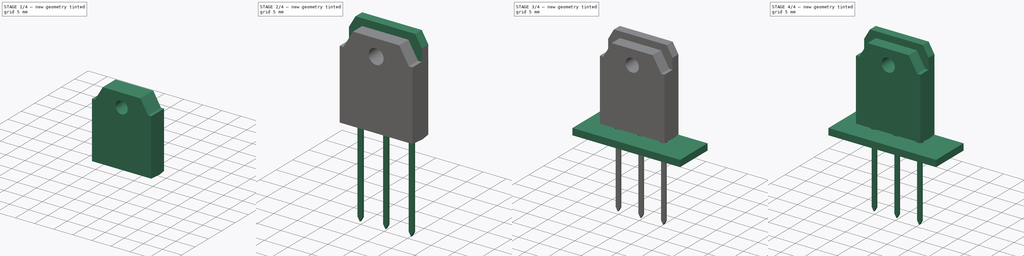
[diagram: build sequence overview — one tinted view per stage of 4, left to right]
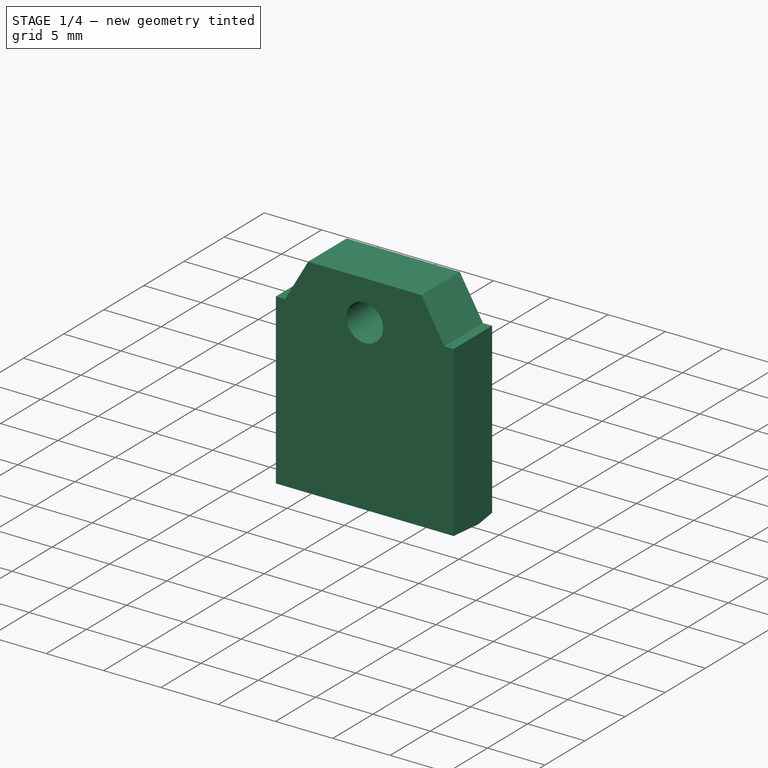
[diagram: stage 1 of 4 — iso view after this stage's code; geometry added in this stage tinted green]
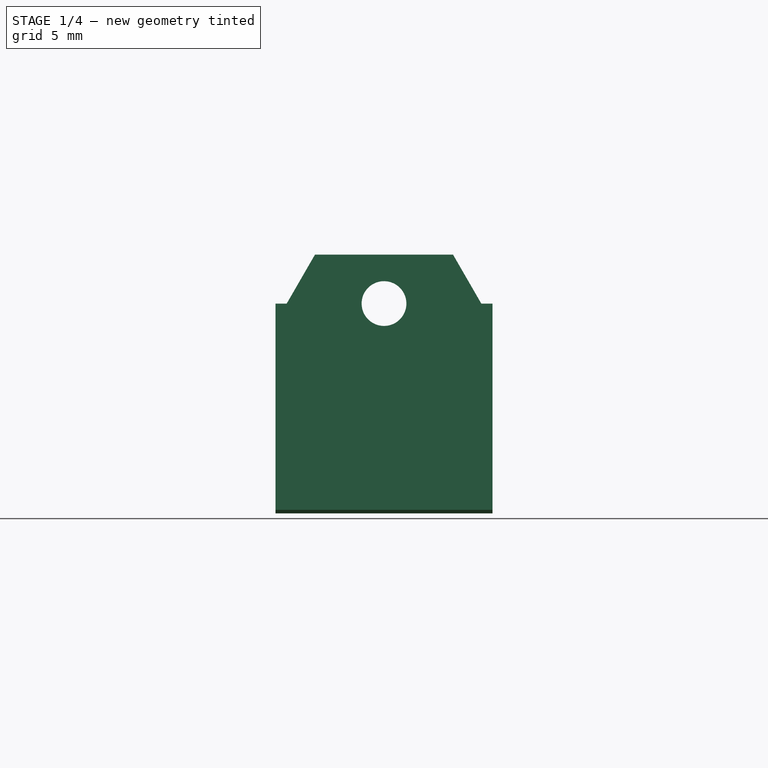
[diagram: stage 1 of 4 — front view after this stage's code; geometry added in this stage tinted green]
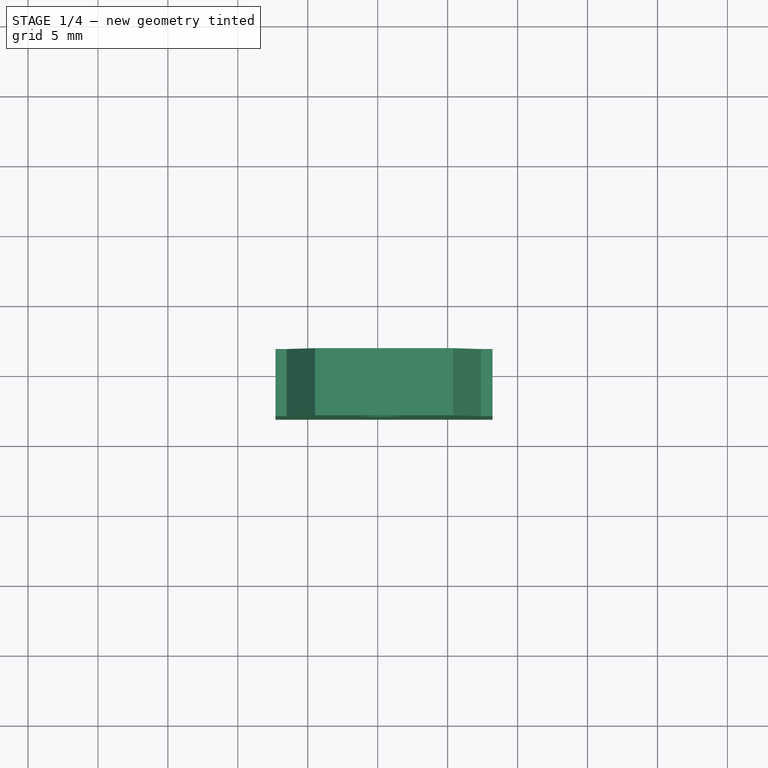
[diagram: stage 1 of 4 — top view after this stage's code; geometry added in this stage tinted green]
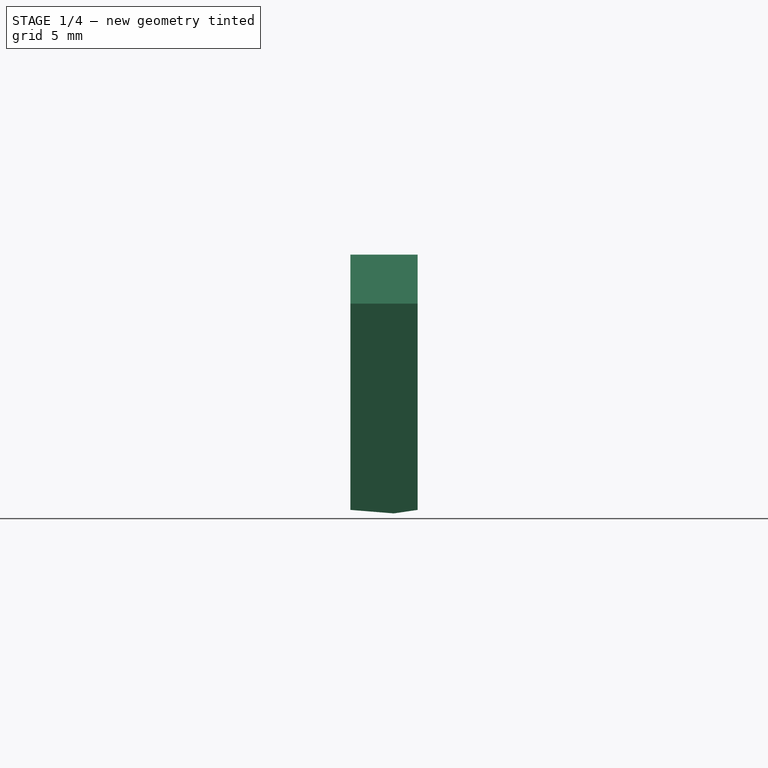
[diagram: stage 1 of 4 — right view after this stage's code; geometry added in this stage tinted green]
FCSTD DOCUMENT  (FreeCAD 0.16R6712 (Git))
Label: TO-3PB-3_Vertical
License: All rights reserved
LicenseURL: http://en.wikipedia.org/wiki/All_rights_reserved
objects: Part::FeaturePython×7, Sketcher::SketchObject×4, PartDesign::Pad×3, App::DocumentObjectGroup×1, PartDesign::Pocket×1, Part::MultiFuse×1
note: 20 computed .brp shape members not serialized (recipe doc carries the construction recipe); baked Part::Feature solids carry a one-line shape summary decoded from their .brp

FEATURE [Sketcher::SketchObject] Sketch001
  Placement = pos=(5.45,0,0) rot=(0.57735,0.57735,0.57735;2.0944rad)
  sketch-geometry (6):
    g0: LineSegment StartX=0 StartY=1.3 StartZ=0 EndX=-3.1 EndY=1.55 EndZ=0
    g1: LineSegment StartX=-3.1 StartY=1.55 StartZ=0 EndX=-3.1 EndY=19.8 EndZ=0
    g2: LineSegment StartX=-3.1 StartY=19.8 StartZ=0 EndX=1.7 EndY=19.8 EndZ=0
    g3: LineSegment StartX=1.7 StartY=19.8 StartZ=0 EndX=1.7 EndY=1.55 EndZ=0
    g4: LineSegment StartX=1.7 StartY=1.55 StartZ=0 EndX=0 EndY=1.3 EndZ=0
    g5: LineSegment [constr] StartX=-3.1 StartY=1.55 StartZ=0 EndX=1.7 EndY=1.55 EndZ=0
  constraints (17):
    c: PointOnObject(g0,g-2)
    c: Coincident(g1,g0)
    c: Vertical(g1)
    c: Horizontal(g2)
    c: Coincident(g3,g2)
    c: Vertical(g3)
    c: Coincident(g4,g3)
    c: Coincident(g4,g0)
    c: Coincident(g5,g0)
    c: Coincident(g5,g3)
    c: Horizontal(g5)
    c: DistanceX(g0,g3) = 1.7
    c: DistanceX(g1,g2) = 4.8
    c: DistanceY(g0,g3) = 0.25
    c: DistanceY(g0,g2) = 18.5
    c: DistanceY(g-1,g0) = 1.3
    c: Coincident(g1,g2)
FEATURE [PartDesign::Pad] Pad001
  Length = 15.51
  Length2 = 100
  Midplane = true
  Placement = pos=(5.45,0,0) rot=(0.57735,0.57735,0.57735;2.0944rad)
  Sketch = -> Sketch001
  Type = 0
  expr: Length = 15.5 + 0.01
FEATURE [App::DocumentObjectGroup] TO_3PB_3_Vertical_fp
  Group = -> [FCrtYd_lines,FFab_lines,Filk_lines,TopPads,BotPads,THPs,newPCB]
FEATURE [PartDesign::Pocket] Pocket
  Length = 5
  Placement = pos=(5.45,0,0) rot=(0.57735,0.57735,0.57735;2.0944rad)
  Sketch = -> Sketch006
  Type = 1
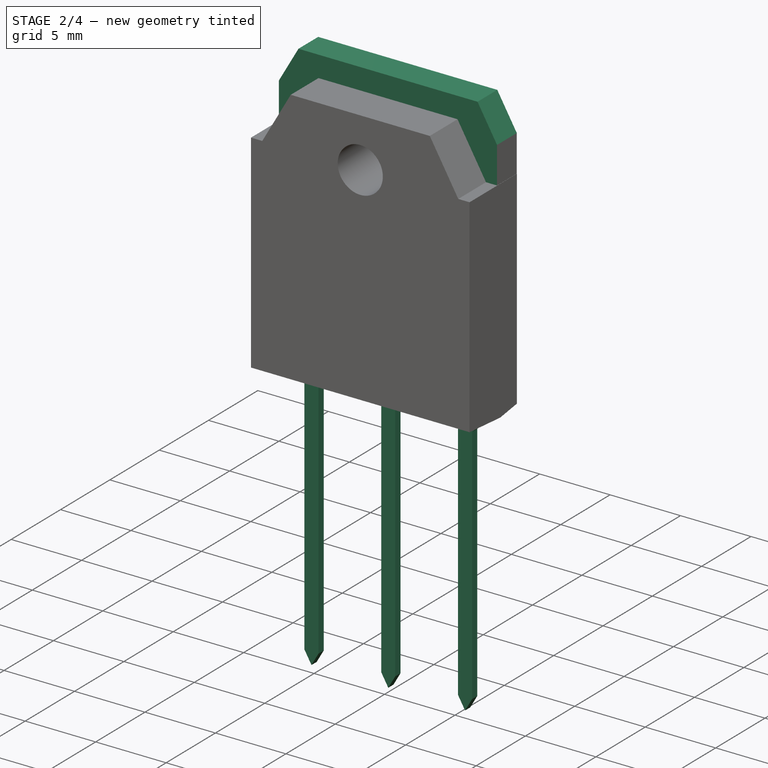
[diagram: stage 2 of 4 — iso view after this stage's code; geometry added in this stage tinted green]
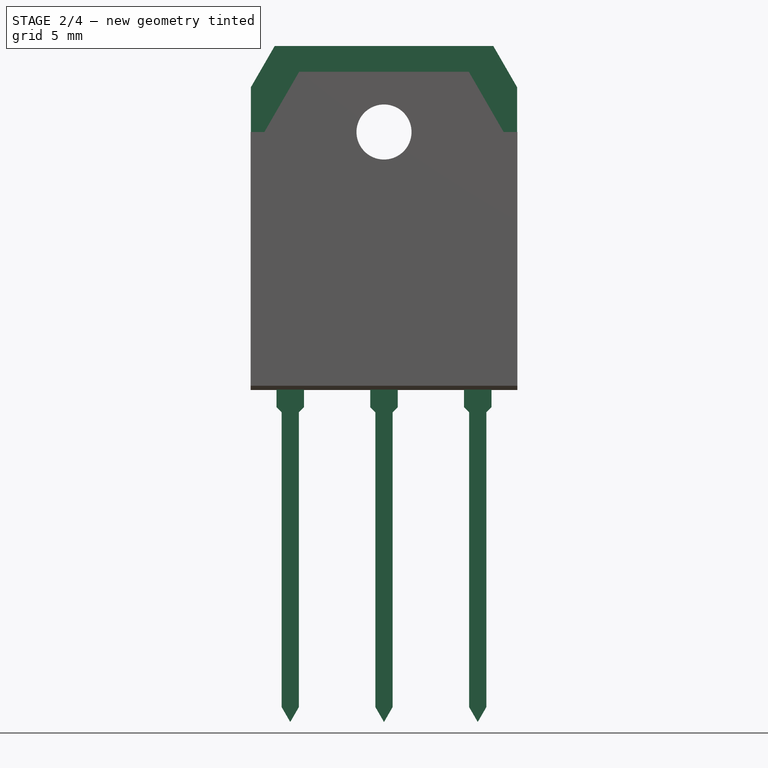
[diagram: stage 2 of 4 — front view after this stage's code; geometry added in this stage tinted green]
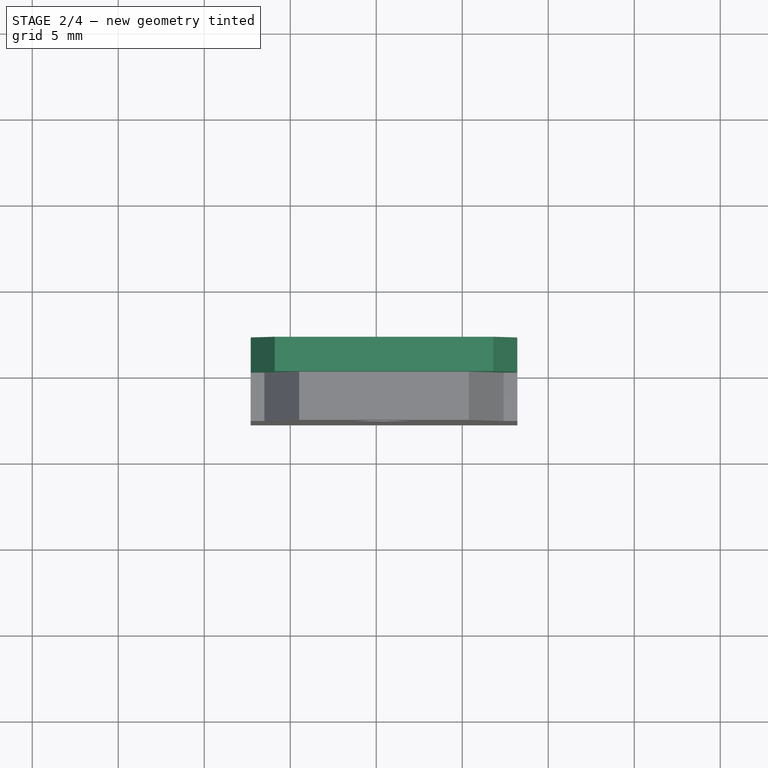
[diagram: stage 2 of 4 — top view after this stage's code; geometry added in this stage tinted green]
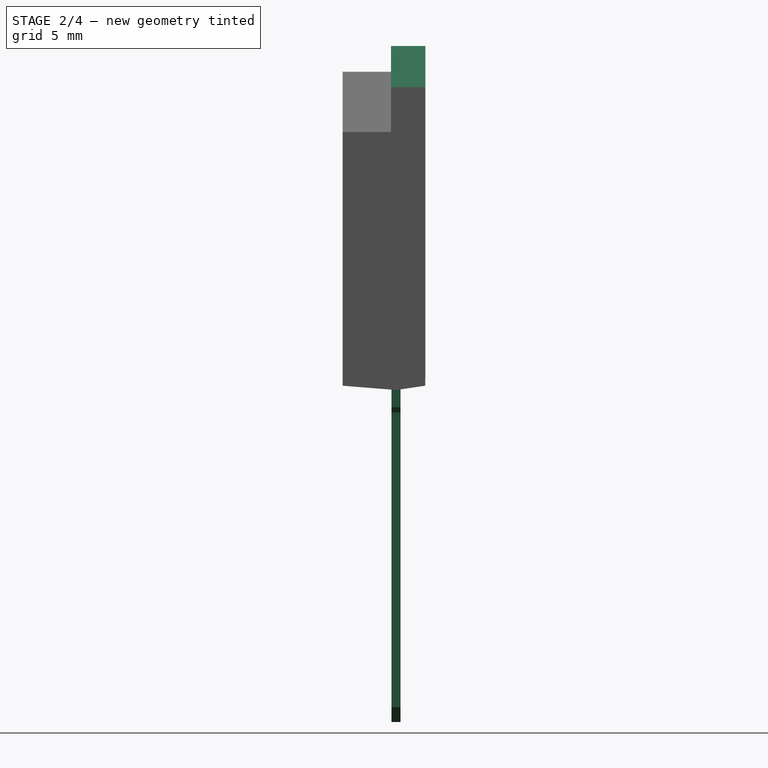
[diagram: stage 2 of 4 — right view after this stage's code; geometry added in this stage tinted green]
FEATURE [Sketcher::SketchObject] Sketch
  Placement = pos=(0,0,0) rot=(1,0,0;1.5708rad)
  expr: Constraints[36] = 20.7 - 2.7
  sketch-geometry (49):
    g0: LineSegment [constr] StartX=-0.5 StartY=0 StartZ=0 EndX=0.5 EndY=0 EndZ=0
    g1: LineSegment [constr] StartX=-0.8 StartY=0.3 StartZ=0 EndX=0.8 EndY=0.3 EndZ=0
    g2: GeomPoint [constr] X=0 Y=0.3 Z=0
    g3: LineSegment [constr] StartX=-0.5 StartY=-17.134 StartZ=0 EndX=0.5 EndY=-17.134 EndZ=0
    g4: GeomPoint [constr] X=0 Y=-17.134 Z=0
    g5: LineSegment StartX=-0.8 StartY=0.3 StartZ=0 EndX=-0.5 EndY=0 EndZ=0
    g6: LineSegment StartX=-0.5 StartY=0 StartZ=0 EndX=-0.5 EndY=-17.134 EndZ=0
    g7: LineSegment StartX=-0.5 StartY=-17.134 StartZ=0 EndX=0 EndY=-18 EndZ=0
    g8: LineSegment StartX=0 StartY=-18 StartZ=0 EndX=0.5 EndY=-17.134 EndZ=0
    g9: LineSegment StartX=0.5 StartY=-17.134 StartZ=0 EndX=0.5 EndY=0 EndZ=0
    g10: LineSegment StartX=0.5 StartY=0 StartZ=0 EndX=0.8 EndY=0.3 EndZ=0
    g11: LineSegment StartX=0.8 StartY=0.3 StartZ=0 EndX=0.8 EndY=5 EndZ=0
    g12: LineSegment StartX=0.8 StartY=5 StartZ=0 EndX=-0.8 EndY=5 EndZ=0
    g13: LineSegment StartX=-0.8 StartY=5 StartZ=0 EndX=-0.8 EndY=0.3 EndZ=0
    g14: LineSegment [constr] StartX=0 StartY=-18 StartZ=0 EndX=0 EndY=0.3 EndZ=0
    g15: LineSegment [constr] StartX=4.95 StartY=0 StartZ=0 EndX=5.95 EndY=0 EndZ=0
    g16: LineSegment [constr] StartX=4.65 StartY=0.3 StartZ=0 EndX=6.25 EndY=0.3 EndZ=0
    g17: GeomPoint [constr] X=5.45 Y=0.3 Z=0
    g18: LineSegment [constr] StartX=4.95 StartY=-17.134 StartZ=0 EndX=5.95 EndY=-17.134 EndZ=0
    g19: GeomPoint [constr] X=5.45 Y=-17.134 Z=0
    g20: LineSegment StartX=4.65 StartY=0.3 StartZ=0 EndX=4.95 EndY=0 EndZ=0
    g21: LineSegment StartX=4.95 StartY=0 StartZ=0 EndX=4.95 EndY=-17.134 EndZ=0
    g22: LineSegment StartX=4.95 StartY=-17.134 StartZ=0 EndX=5.45 EndY=-18 EndZ=0
    g23: LineSegment StartX=5.45 StartY=-18 StartZ=0 EndX=5.95 EndY=-17.134 EndZ=0
    g24: LineSegment StartX=5.95 StartY=-17.134 StartZ=0 EndX=5.95 EndY=0 EndZ=0
    g25: LineSegment StartX=5.95 StartY=0 StartZ=0 EndX=6.25 EndY=0.3 EndZ=0
    g26: LineSegment StartX=6.25 StartY=0.3 StartZ=0 EndX=6.25 EndY=5 EndZ=0
    g27: LineSegment StartX=6.25 StartY=5 StartZ=0 EndX=4.65 EndY=5 EndZ=0
    g28: LineSegment StartX=4.65 StartY=5 StartZ=0 EndX=4.65 EndY=0.3 EndZ=0
    g29: LineSegment [constr] StartX=5.45 StartY=-18 StartZ=0 EndX=5.45 EndY=0.3 EndZ=0
    g30: LineSegment [constr] StartX=10.4 StartY=0 StartZ=0 EndX=11.4 EndY=0 EndZ=0
    g31: LineSegment [constr] StartX=10.1 StartY=0.3 StartZ=0 EndX=11.7 EndY=0.3 EndZ=0
    g32: GeomPoint [constr] X=10.9 Y=0.3 Z=0
    g33: LineSegment [constr] StartX=10.4 StartY=-17.134 StartZ=0 EndX=11.4 EndY=-17.134 EndZ=0
    g34: GeomPoint [constr] X=10.9 Y=-17.134 Z=0
    g35: LineSegment StartX=10.1 StartY=0.3 StartZ=0 EndX=10.4 EndY=0 EndZ=0
    g36: LineSegment StartX=10.4 StartY=0 StartZ=0 EndX=10.4 EndY=-17.134 EndZ=0
    g37: LineSegment StartX=10.4 StartY=-17.134 StartZ=0 EndX=10.9 EndY=-18 EndZ=0
    g38: LineSegment StartX=10.9 StartY=-18 StartZ=0 EndX=11.4 EndY=-17.134 EndZ=0
    g39: LineSegment StartX=11.4 StartY=-17.134 StartZ=0 EndX=11.4 EndY=0 EndZ=0
    g40: LineSegment StartX=11.4 StartY=0 StartZ=0 EndX=11.7 EndY=0.3 EndZ=0
    g41: LineSegment StartX=11.7 StartY=0.3 StartZ=0 EndX=11.7 EndY=5 EndZ=0
    g42: LineSegment StartX=11.7 StartY=5 StartZ=0 EndX=10.1 EndY=5 EndZ=0
    g43: LineSegment StartX=10.1 StartY=5 StartZ=0 EndX=10.1 EndY=0.3 EndZ=0
    g44: LineSegment [constr] StartX=10.9 StartY=-18 StartZ=0 EndX=10.9 EndY=0.3 EndZ=0
    g45: GeomPoint [constr] X=5.45 Y=0 Z=0
    g46: GeomPoint [constr] X=10.9 Y=0 Z=0
    g47: LineSegment [constr] StartX=0 StartY=-18 StartZ=0 EndX=10.9 EndY=-18 EndZ=0
    g48: LineSegment [constr] StartX=-0.8 StartY=5 StartZ=0 EndX=10.1 EndY=5 EndZ=0
  constraints (117):
    c: PointOnObject(g0,g-1)
    c: Horizontal(g0)
    c: Symmetric(g0,g0,g-1)
    c: DistanceX(g0,g0) = 1
    c: Horizontal(g1)
    c: PointOnObject(g2,g-2)
    c: Symmetric(g1,g1,g2)
    c: DistanceX(g1,g1) = 1.6
    c: Horizontal(g3)
    c: Equal(g0,g3) = 0.8
    c: PointOnObject(g4,g-2)
    c: Symmetric(g3,g3,g4)
    c: Coincident(g5,g1)
    c: Coincident(g5,g0)
    c: Coincident(g6,g0)
    c: Coincident(g6,g3)
    c: Coincident(g7,g3)
    c: Coincident(g8,g7)
    c: Coincident(g8,g3)
    c: PointOnObject(g7,g-2)
    c: Coincident(g9,g3)
    c: Coincident(g9,g0)
    c: Coincident(g10,g0)
    c: Coincident(g10,g1)
    c: Coincident(g11,g1)
    c: Vertical(g11)
    c: Coincident(g12,g11)
    c: Horizontal(g12)
    c: Coincident(g13,g12)
    c: Coincident(g13,g1)
    c: Vertical(g13)
    c: Angle(g5,g13) = 2.35619
    c: Angle(g9,g8) = 2.61799
    c: DistanceY(g-1,g12) = 5
    c: Coincident(g14,g7)
    c: Coincident(g14,g2)
    c: DistanceY(g7,g-1) = 18
    c: Horizontal(g15)
    c: Equal(g0,g15) = 0.8
    c: Horizontal(g16)
    c: Symmetric(g16,g16,g17)
    c: Equal(g1,g16) = 1.355
    c: Horizontal(g18)
    c: Equal(g15,g18) = 0.8
    c: Symmetric(g18,g18,g19)
    c: Coincident(g20,g16)
    c: Coincident(g20,g15)
    c: Coincident(g21,g15)
    c: Coincident(g21,g18)
    c: Coincident(g22,g18)
    c: Coincident(g23,g22)
    c: Coincident(g23,g18)
    c: Coincident(g24,g18)
    c: Coincident(g24,g15)
    c: Coincident(g25,g24)
    c: Coincident(g25,g16)
    c: Coincident(g26,g16)
    c: Vertical(g26)
    c: Coincident(g27,g26)
    c: Horizontal(g27)
    c: Coincident(g28,g27)
    c: Coincident(g28,g16)
    c: Vertical(g28)
    c: Angle(g20,g28) = 2.35619
    c: Angle(g24,g23) = 2.61799
    c: Coincident(g29,g22)
    c: Coincident(g29,g17)
    c: Horizontal(g30)
    c: Equal(g0,g30) = 0.8
    c: Horizontal(g31)
    c: Symmetric(g31,g31,g32)
    c: Equal(g1,g31) = 1.355
    c: Horizontal(g33)
    c: Equal(g30,g33) = 0.8
    c: Symmetric(g33,g33,g34)
    c: Coincident(g35,g31)
    c: Coincident(g35,g30)
    c: Coincident(g36,g30)
    c: Coincident(g36,g33)
    c: Coincident(g37,g33)
    c: Coincident(g38,g37)
    c: Coincident(g38,g33)
    c: Coincident(g39,g33)
    c: Coincident(g39,g30)
    c: Coincident(g40,g30)
    c: Coincident(g40,g31)
    c: Coincident(g41,g31)
    c: Vertical(g41)
    c: Coincident(g42,g41)
    c: Horizontal(g42)
    c: Coincident(g43,g42)
    c: Coincident(g43,g31)
    c: Vertical(g43)
    c: Angle(g35,g43) = 2.35619
    c: Angle(g39,g38) = 2.61799
    c: Coincident(g44,g37)
    c: Coincident(g44,g32)
    c: PointOnObject(g15,g-1)
    c: PointOnObject(g45,g29)
    c: Symmetric(g15,g15,g45)
    c: Vertical(g29)
    c: Vertical(g44)
    c: PointOnObject(g46,g44)
    c: Symmetric(g30,g30,g46)
    c: PointOnObject(g19,g29)
    c: PointOnObject(g34,g44)
    c: DistanceX(g7,g22) = 5.45
    c: DistanceX(g22,g37) = 5.45
    c: Coincident(g47,g7)
    c: Coincident(g47,g37)
    c: Horizontal(g47)
    c: PointOnObject(g22,g47)
    c: PointOnObject(g30,g-1)
    c: Coincident(g48,g12)
    c: Coincident(g48,g42)
    c: Horizontal(g48)
    c: PointOnObject(g27,g48)
FEATURE [PartDesign::Pad] Pad
  Length = 0.525
  Length2 = 100
  Midplane = true
  Placement = pos=(0,0,0) rot=(1,0,0;1.5708rad)
  Reversed = true
  Sketch = -> Sketch
  Type = 0
  expr: Length = (0.6 + 0.45) / 2
FEATURE [Sketcher::SketchObject] Sketch006
  ExternalGeometry = -> [Pad001]
  Placement = pos=(5.45,-3.1,0) rot=(0.57735,0.57735,-0.57735;2.0944rad)
  Support = -> Pad001 [Face2]
  sketch-geometry (10):
    g0: LineSegment StartX=-19.8 StartY=7.755 StartZ=0 EndX=-16.3 EndY=7.755 EndZ=0
    g1: LineSegment StartX=-16.3 StartY=7.755 StartZ=0 EndX=-16.3 EndY=6.955 EndZ=0
    g2: LineSegment StartX=-16.3 StartY=6.955 StartZ=0 EndX=-19.8 EndY=4.93427 EndZ=0
    g3: LineSegment StartX=-19.8 StartY=4.93427 StartZ=0 EndX=-19.8 EndY=7.755 EndZ=0
    g4: LineSegment StartX=-19.8 StartY=-7.755 StartZ=0 EndX=-19.8 EndY=-4.93427 EndZ=0
    g5: LineSegment StartX=-19.8 StartY=-4.93427 StartZ=0 EndX=-16.3 EndY=-6.955 EndZ=0
    g6: LineSegment StartX=-16.3 StartY=-6.955 StartZ=0 EndX=-16.3 EndY=-7.755 EndZ=0
    g7: LineSegment StartX=-16.3 StartY=-7.755 StartZ=0 EndX=-19.8 EndY=-7.755 EndZ=0
    g8: Circle CenterX=-16.3 CenterY=0 CenterZ=0 NormalX=0 NormalY=0 NormalZ=1 Radius=1.6
    g9: LineSegment [constr] StartX=-16.3 StartY=0 StartZ=0 EndX=-19.8 EndY=0 EndZ=0
  constraints (28):
    c: Horizontal(g0)
    c: Coincident(g2,g1)
    c: Coincident(g3,g2)
    c: Coincident(g3,g0)
    c: Vertical(g4)
    c: Coincident(g5,g4)
    c: Coincident(g6,g5)
    c: Vertical(g6)
    c: Coincident(g7,g4)
    c: Horizontal(g7)
    c: Coincident(g6,g7)
    c: Equal(g1,g6)
    c: Coincident(g0,g1)
    c: Equal(g7,g0)
    c: Vertical(g1)
    c: Equal(g2,g5)
    c: DistanceX(g7,g7) = 3.5
    c: DistanceY(g6,g6) = 0.8
    c: Coincident(g9,g8)
    c: Horizontal(g9)
    c: Radius(g8) = 1.6
    c: DistanceX(g9,g9) = 3.5
    c: Coincident(g0,g-3)
    c: PointOnObject(g2,g-3)
    c: PointOnObject(g4,g-3)
    c: Symmetric(g-3,g-3,g9)
    c: Coincident(g4,g-3)
    c: Angle(g5,g7) = 0.523599
FEATURE [Sketcher::SketchObject] Sketch007
  Placement = pos=(0,1.71,0) rot=(1,0,0;1.5708rad)
  sketch-geometry (8):
    g0: LineSegment StartX=-2.29 StartY=2 StartZ=0 EndX=13.19 EndY=2 EndZ=0
    g1: LineSegment StartX=13.19 StartY=2 StartZ=0 EndX=13.19 EndY=18.9 EndZ=0
    g2: LineSegment StartX=-2.29 StartY=18.9 StartZ=0 EndX=-2.29 EndY=2 EndZ=0
    g3: LineSegment StartX=-2.29 StartY=18.9 StartZ=0 EndX=-0.904359 EndY=21.3 EndZ=0
    g4: LineSegment StartX=-0.904359 StartY=21.3 StartZ=0 EndX=11.8044 EndY=21.3 EndZ=0
    g5: LineSegment StartX=11.8044 StartY=21.3 StartZ=0 EndX=13.19 EndY=18.9 EndZ=0
    g6: LineSegment [constr] StartX=5.45 StartY=2 StartZ=0 EndX=5.45 EndY=21.3 EndZ=0
    g7: Circle CenterX=5.45 CenterY=16.3 CenterZ=0 NormalX=0 NormalY=0 NormalZ=1 Radius=1.65
  constraints (25):
    c: Coincident(g0,g1)
    c: Coincident(g2,g0)
    c: Horizontal(g0)
    c: Vertical(g1)
    c: Vertical(g2)
    c: Coincident(g3,g2)
    c: Coincident(g4,g3)
    c: Horizontal(g4)
    c: Coincident(g5,g4)
    c: Coincident(g5,g1)
    c: PointOnObject(g6,g0)
    c: PointOnObject(g6,g4)
    c: Vertical(g6)
    c: Symmetric(g4,g4,g6)
    c: Symmetric(g0,g0,g6)
    c: Equal(g5,g3)
    c: DistanceX(g0,g0) = 15.48
    c: DistanceY(g0,g4) = 19.3
    c: DistanceX(g-1,g6) = 5.45
    c: DistanceY(g-1,g0) = 2
    c: PointOnObject(g7,g6)
    c: Radius(g7) = 1.65
    c: DistanceY(g7,g6) = 5
    c: DistanceY(g7,g2) = 2.6
    c: Angle(g2,g3) = 2.61799
FEATURE [PartDesign::Pad] Pad002
  Length = 2
  Length2 = 100
  Placement = pos=(0,1.71,0) rot=(1,0,0;1.5708rad)
  Sketch = -> Sketch007
  Type = 0
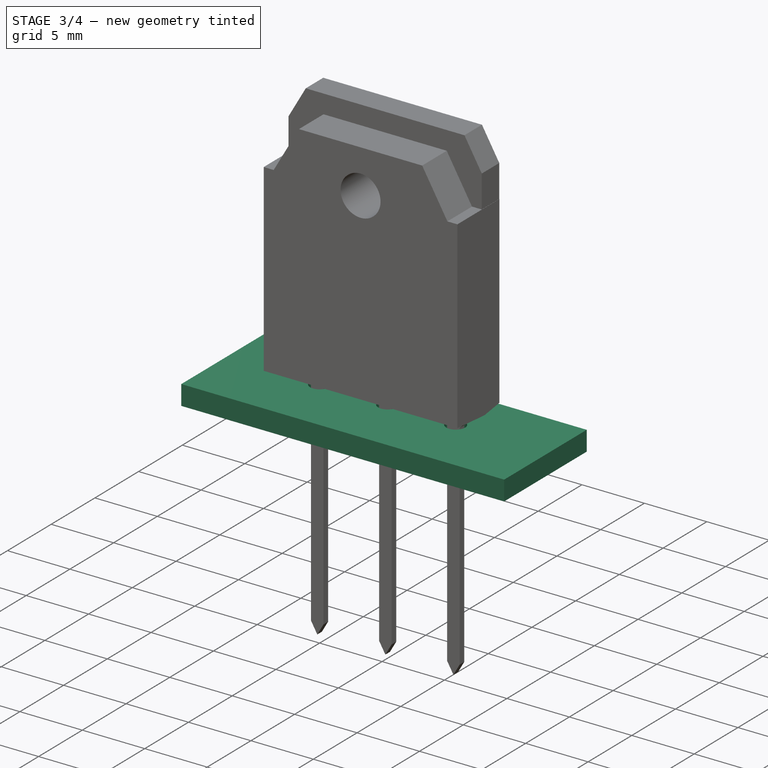
[diagram: stage 3 of 4 — iso view after this stage's code; geometry added in this stage tinted green]
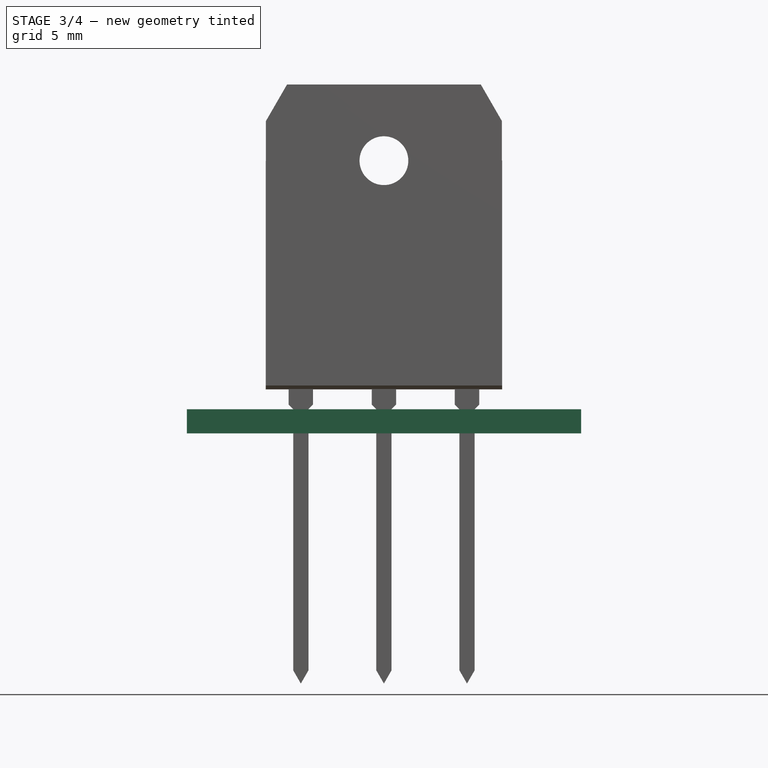
[diagram: stage 3 of 4 — front view after this stage's code; geometry added in this stage tinted green]
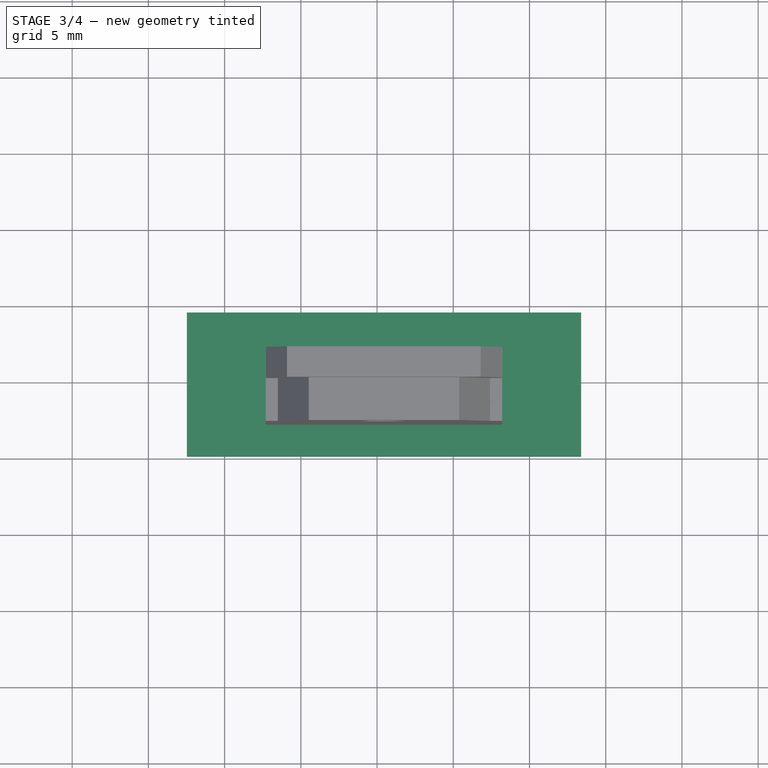
[diagram: stage 3 of 4 — top view after this stage's code; geometry added in this stage tinted green]
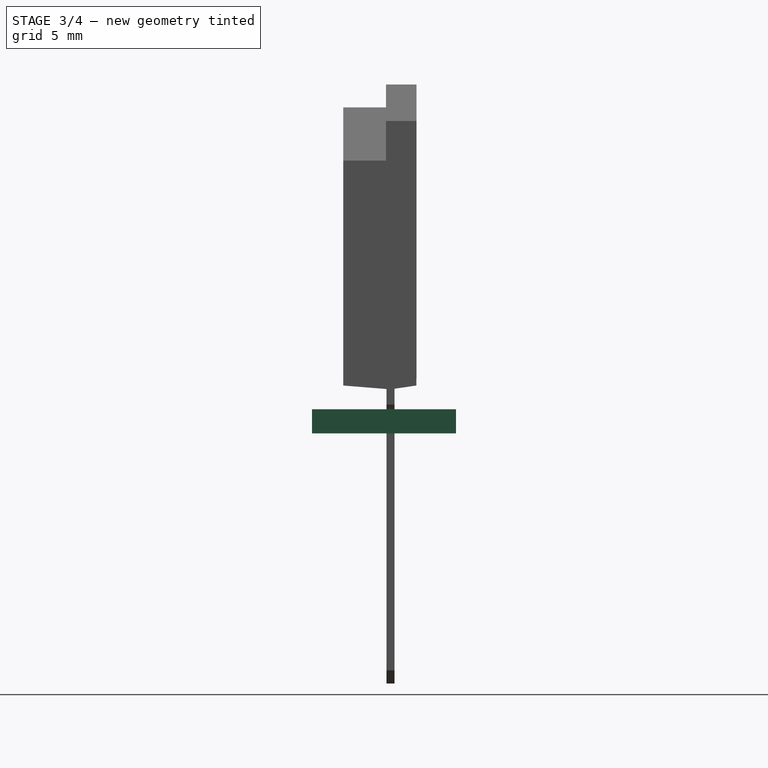
[diagram: stage 3 of 4 — right view after this stage's code; geometry added in this stage tinted green]
FEATURE [Part::FeaturePython] THPs  label="PTHs"  # a2plus imported part (geometry in sourceFile) (typed FeaturePython)
  fixedPosition = true
FEATURE [Part::FeaturePython] newPCB  label="Pcb"  # a2plus imported part (geometry in sourceFile) (typed FeaturePython)
  fixedPosition = true
FEATURE [Part::MultiFuse] Pad_mp_cp  label="TO-3PB-3_Vertical"
  Shapes = -> [Pad,Pad002,Pocket]
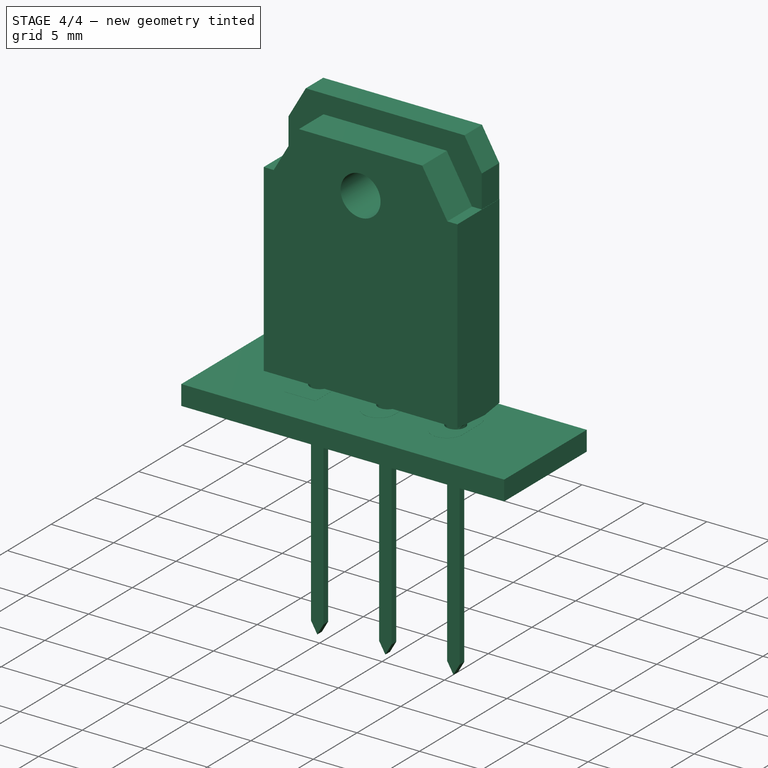
[diagram: stage 4 of 4 — iso view after this stage's code; geometry added in this stage tinted green]
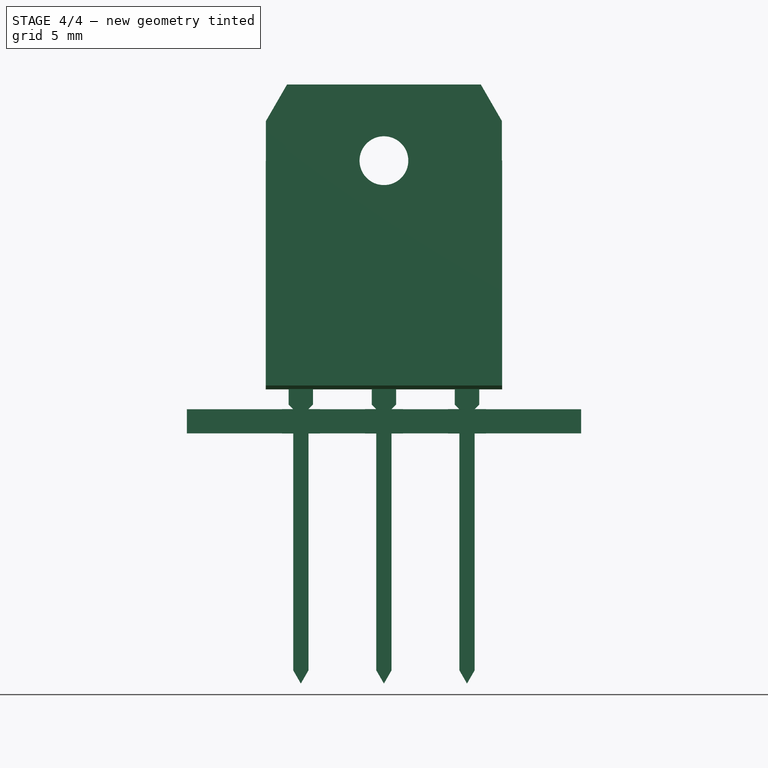
[diagram: stage 4 of 4 — front view after this stage's code; geometry added in this stage tinted green]
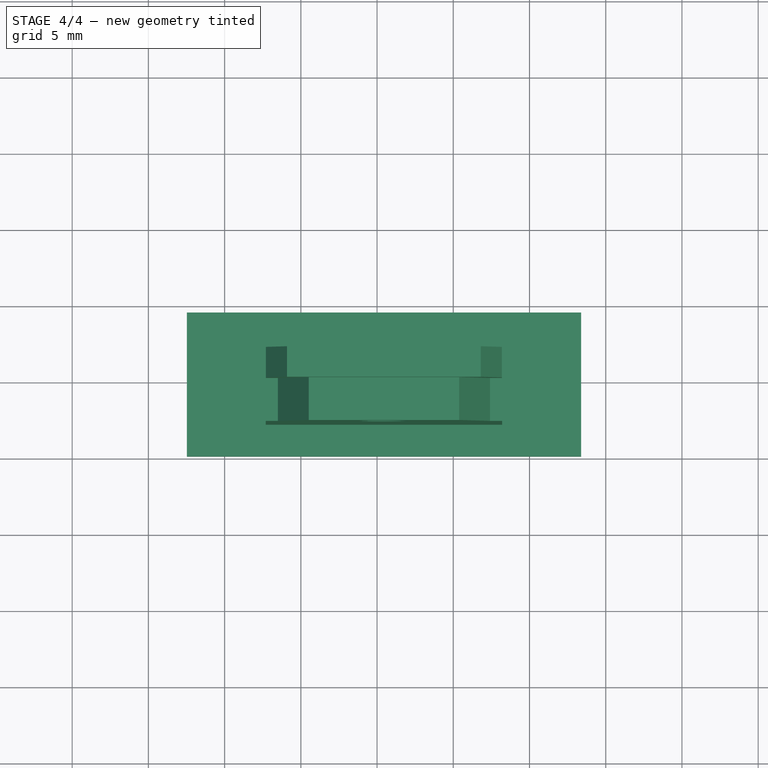
[diagram: stage 4 of 4 — top view after this stage's code; geometry added in this stage tinted green]
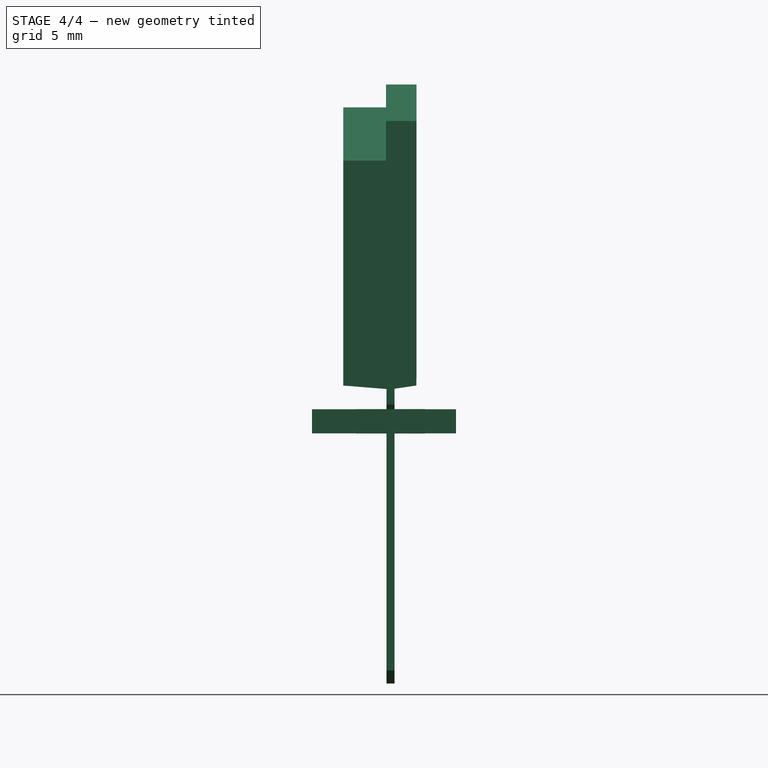
[diagram: stage 4 of 4 — right view after this stage's code; geometry added in this stage tinted green]
FEATURE [Part::FeaturePython] FCrtYd_lines  label="FCrtYd"  # a2plus imported part (geometry in sourceFile) (typed FeaturePython)
  fixedPosition = true
FEATURE [Part::FeaturePython] FFab_lines  label="FFab"  # a2plus imported part (geometry in sourceFile) (typed FeaturePython)
  fixedPosition = true
FEATURE [Part::FeaturePython] Filk_lines  label="FrontSilk"  # a2plus imported part (geometry in sourceFile) (typed FeaturePython)
  fixedPosition = true
FEATURE [Part::FeaturePython] TopPads  # a2plus imported part (geometry in sourceFile) (typed FeaturePython)
  fixedPosition = true
FEATURE [Part::FeaturePython] BotPads  # a2plus imported part (geometry in sourceFile) (typed FeaturePython)
  fixedPosition = true
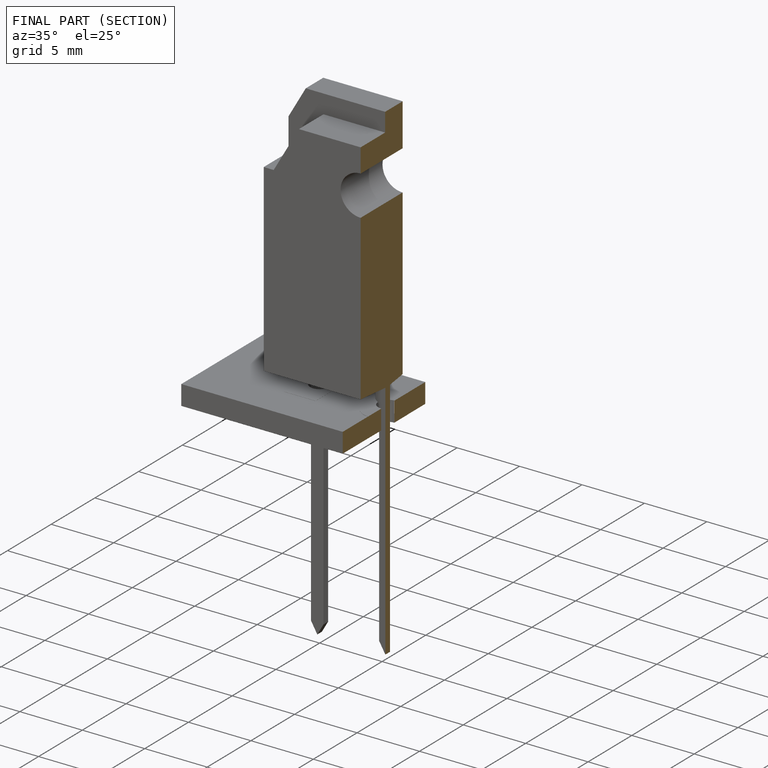
[diagram: finished part — half-section view (interior)]
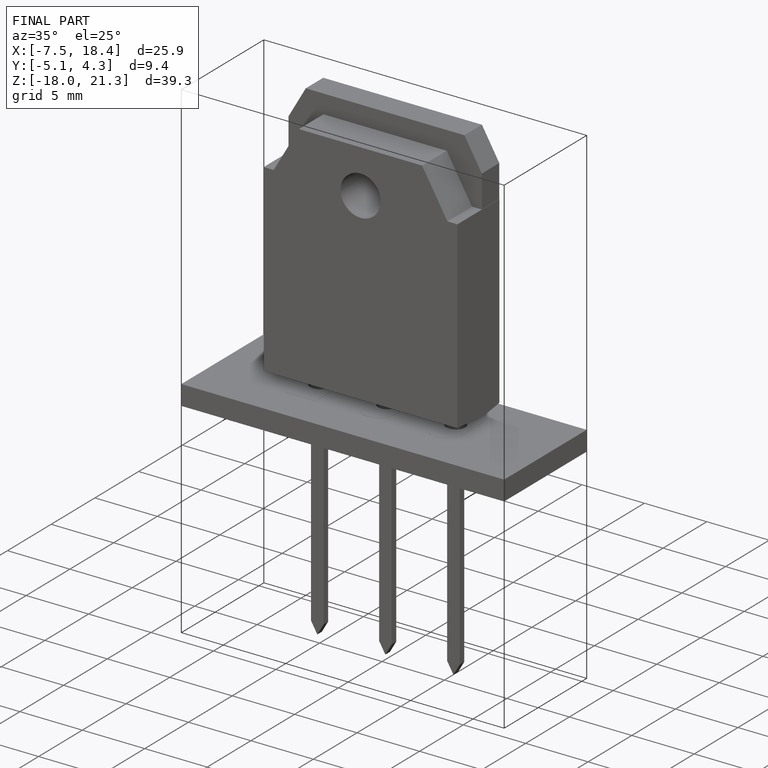
[diagram: finished part — iso view with bounding-box wireframe]
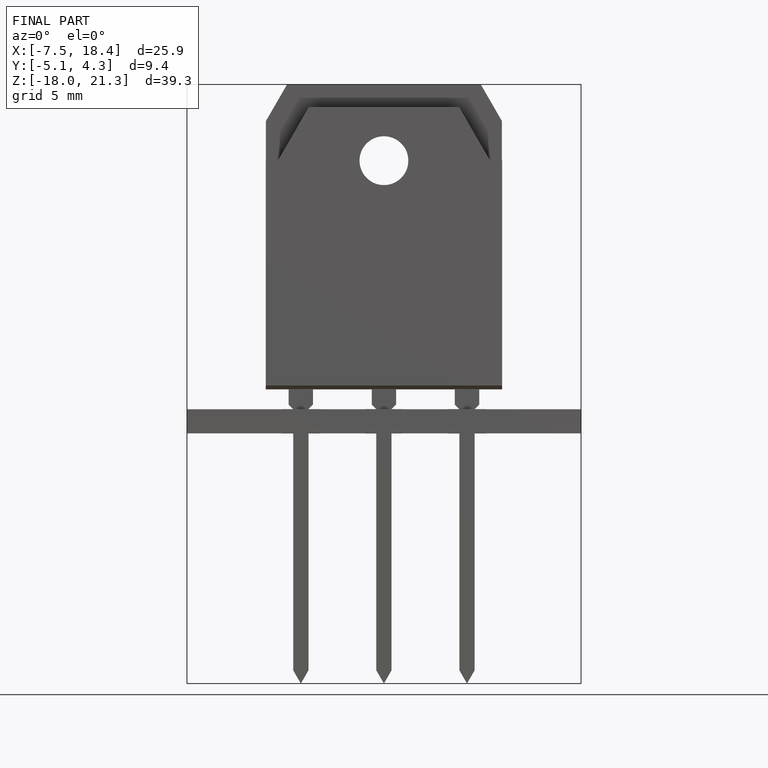
[diagram: finished part — front view with bounding-box wireframe]
